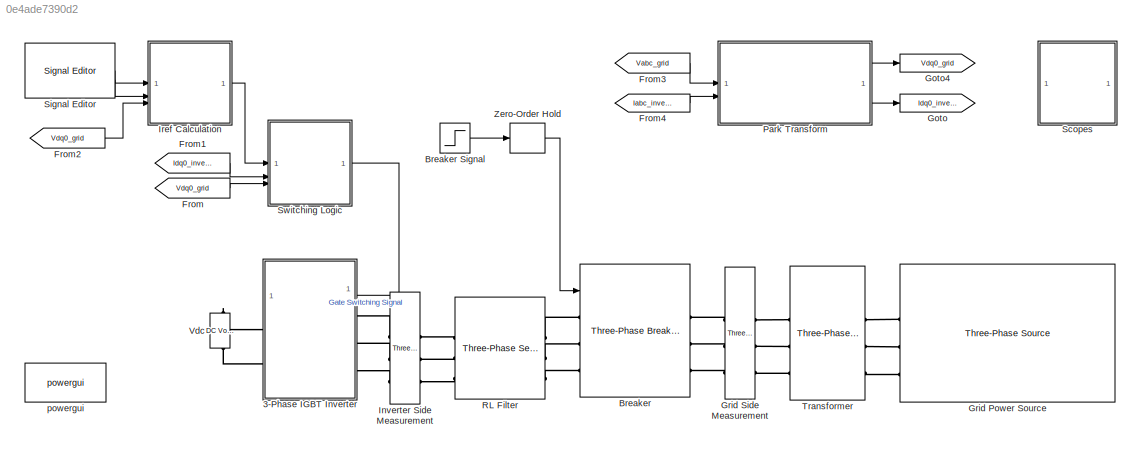
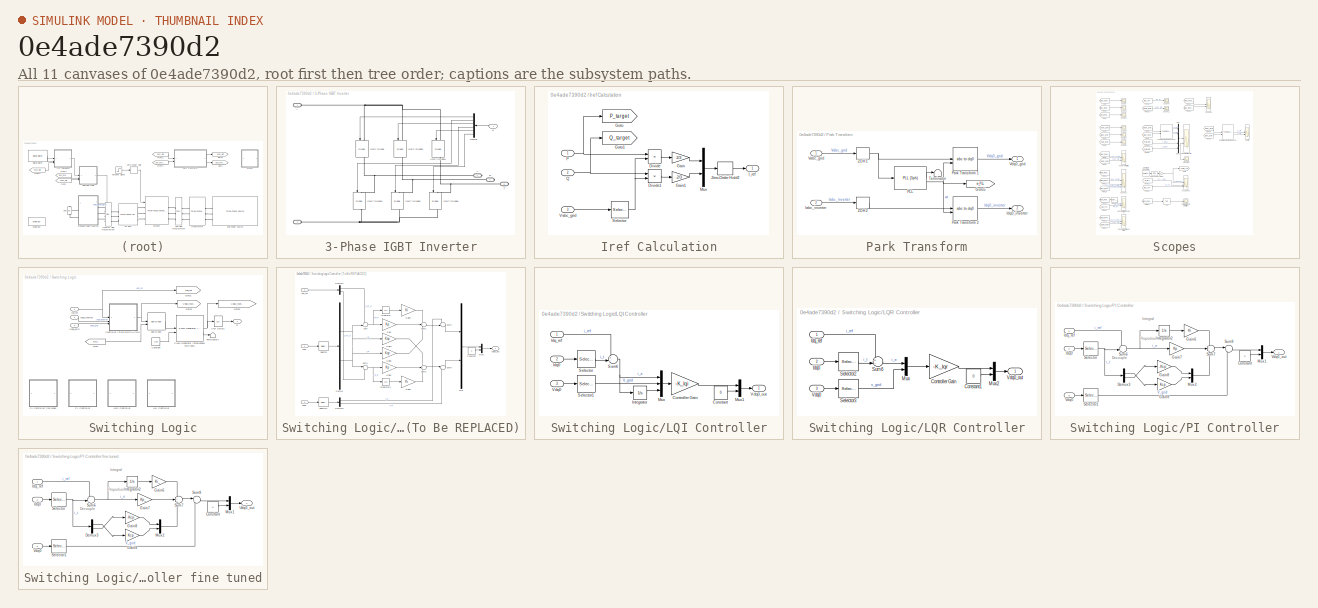
[diagram: thumbnail index - all 11 canvases of the model, root first then tree order]
MODEL slx_0e4ade7390d2
KIND model
CONFIG AbsTol = auto
CONFIG EnableMultiTasking = off
CONFIG FixedStep = auto
CONFIG InitFcn = run('constants.m');
CONFIG MaxStep = auto
CONFIG MinStep = auto
CONFIG PreLoadFcn = run('constants.m');
CONFIG RelTol = 1e-3
CONFIG SampleTimeConstraint = Unconstrained
CONFIG SolverName = ode45
CONFIG StartTime = 0.0
CONFIG StopTime = 1
BLOCK [SubSystem] 3-Phase IGBT Inverter
  PortSchema = {"entries":[{"content":{"sides":[{"content":{"connectorIds":["LConn1","LConn2"]},"type":"ConnectorPlacement.EquallySpacedRectSide","uuid":"b894f77a-afb6-49ea-9e82-1d7302d1b564"},{"content":{"connectorIds":["In1","RConn1","RConn2","RConn3"],"side":"RIGHT"},"type":"ConnectorPlacement.EquallySpacedRectSide","uuid":"2e0b49ec-be7c-4f2f-9d64-b0056ee6a69f"},{"content":{"side":"TOP"},"type":"ConnectorPlac...<+260ch>
BLOCK [PMIOPort] 3-Phase IGBT Inverter/+
  Side = Left
BLOCK [PMIOPort] 3-Phase IGBT Inverter/-
  Port = 2
  Side = Left
BLOCK [PMIOPort] 3-Phase IGBT Inverter/A
  NameLocation = top
  Port = 3
  Side = Right
BLOCK [PMIOPort] 3-Phase IGBT Inverter/B
  NameLocation = top
  Port = 4
  Side = Right
BLOCK [PMIOPort] 3-Phase IGBT Inverter/C
  NameLocation = top
  Port = 5
  Side = Right
BLOCK [Demux] 3-Phase IGBT Inverter/Demux
  NameLocation = top
  Outputs = 6
BLOCK [Reference] 3-Phase IGBT Inverter/IGBT//Diode  REF=spsIGBTDiodeLib/IGBT//Diode
  LibrarySourceBlock = sps_lib/Power Electronics/IGBT//Diode
  NameLocation = right
  SourceBlock = spsIGBTDiodeLib/IGBT//Diode
  SourceType = IGBT/Diode
BLOCK [Reference] 3-Phase IGBT Inverter/IGBT//Diode1  REF=spsIGBTDiodeLib/IGBT//Diode
  LibrarySourceBlock = sps_lib/Power Electronics/IGBT//Diode
  NameLocation = right
  SourceBlock = spsIGBTDiodeLib/IGBT//Diode
  SourceType = IGBT/Diode
BLOCK [Reference] 3-Phase IGBT Inverter/IGBT//Diode2  REF=spsIGBTDiodeLib/IGBT//Diode
  LibrarySourceBlock = sps_lib/Power Electronics/IGBT//Diode
  NameLocation = right
  SourceBlock = spsIGBTDiodeLib/IGBT//Diode
  SourceType = IGBT/Diode
BLOCK [Reference] 3-Phase IGBT Inverter/IGBT//Diode3  REF=spsIGBTDiodeLib/IGBT//Diode
  LibrarySourceBlock = sps_lib/Power Electronics/IGBT//Diode
  NameLocation = right
  SourceBlock = spsIGBTDiodeLib/IGBT//Diode
  SourceType = IGBT/Diode
BLOCK [Reference] 3-Phase IGBT Inverter/IGBT//Diode4  REF=spsIGBTDiodeLib/IGBT//Diode
  LibrarySourceBlock = sps_lib/Power Electronics/IGBT//Diode
  NameLocation = right
  SourceBlock = spsIGBTDiodeLib/IGBT//Diode
  SourceType = IGBT/Diode
BLOCK [Reference] 3-Phase IGBT Inverter/IGBT//Diode5  REF=spsIGBTDiodeLib/IGBT//Diode
  LibrarySourceBlock = sps_lib/Power Electronics/IGBT//Diode
  NameLocation = right
  SourceBlock = spsIGBTDiodeLib/IGBT//Diode
  SourceType = IGBT/Diode
BLOCK [Inport] 3-Phase IGBT Inverter/g
  NameLocation = top
BLOCK [Reference] Breaker  REF=spsThreePhaseBreakerLib/Three-Phase Breaker
  LibrarySourceBlock = sps_lib/Power Grid Elements/Three-Phase Breaker
  SourceBlock = spsThreePhaseBreakerLib/Three-Phase Breaker
  SourceType = Three-Phase Breaker
BLOCK [Step] Breaker Signal
  SampleTime = 0
  Time = t_breaker_on
BLOCK [From] From
  GotoTag = Vdq0_grid
  TagVisibility = global
BLOCK [From] From1
  GotoTag = Idq0_inverter
  TagVisibility = global
BLOCK [From] From2
  GotoTag = Vdq0_grid
  TagVisibility = global
BLOCK [From] From3
  GotoTag = Vabc_grid
  TagVisibility = global
BLOCK [From] From4
  GotoTag = Iabc_inverter
  TagVisibility = global
BLOCK [Goto] Goto
  GotoTag = Idq0_inverter
  TagVisibility = global
BLOCK [Goto] Goto4
  GotoTag = Vdq0_grid
  TagVisibility = global
BLOCK [Reference] Grid Power Source  REF=spsThreePhaseSourceLib/Three-Phase Source
  LibrarySourceBlock = sps_lib/Sources/Three-Phase Source
  SourceBlock = spsThreePhaseSourceLib/Three-Phase Source
  SourceType = Three-Phase Source
BLOCK [Reference] Grid Side Measurement  REF=spsThreePhaseVIMeasurementLib/Three-Phase
V-I Measurement
  LibrarySourceBlock = sps_lib/Sensors and Measurements/Three-Phase\nV-I Measurement
  SourceBlock = spsThreePhaseVIMeasurementLib/Three-Phase\nV-I Measurement
  SourceType = Three-Phase VI Measurement
BLOCK [Reference] Inverter Side Measurement  REF=spsThreePhaseVIMeasurementLib/Three-Phase
V-I Measurement
  LibrarySourceBlock = sps_lib/Sensors and Measurements/Three-Phase\nV-I Measurement
  SourceBlock = spsThreePhaseVIMeasurementLib/Three-Phase\nV-I Measurement
  SourceType = Three-Phase VI Measurement
BLOCK [SubSystem] Iref Calculation
BLOCK [Product] Iref Calculation/Divide
  Inputs = */
BLOCK [Product] Iref Calculation/Divide1
  Inputs = */
BLOCK [Gain] Iref Calculation/Gain
  Gain = 2/3
BLOCK [Gain] Iref Calculation/Gain1
  Gain = -2/3
BLOCK [Goto] Iref Calculation/Goto
  GotoTag = P_target
  TagVisibility = global
BLOCK [Goto] Iref Calculation/Goto1
  GotoTag = Q_target
  TagVisibility = global
BLOCK [Outport] Iref Calculation/I_ref
BLOCK [Mux] Iref Calculation/Mux
  DisplayOption = bar
  Inputs = 2
BLOCK [Inport] Iref Calculation/P
BLOCK [Inport] Iref Calculation/Q
  Port = 2
BLOCK [Selector] Iref Calculation/Selector
  IndexOptions = Index vector (dialog)
  Indices = [1]
  InputPortWidth = 3
  OutputSizes = 1
BLOCK [Inport] Iref Calculation/Vabc_grid
  Port = 3
BLOCK [ZeroOrderHold] Iref Calculation/Zero-Order Hold2
  SampleTime = t_sample
BLOCK [SubSystem] Park Transform
BLOCK [Goto] Park Transform/Goto5
  GotoTag = w_PLL
  TagVisibility = global
BLOCK [Inport] Park Transform/Iabc_inverter
  NameLocation = left
  Port = 2
BLOCK [Outport] Park Transform/Idq0_inverter
  NameLocation = right
  Port = 2
BLOCK [Reference] Park Transform/PLL  REF=spsPLL3phLib/PLL
(3ph)
  SourceBlock = spsPLL3phLib/PLL\n(3ph)
  SourceType = PLL (3ph)
BLOCK [Reference] Park Transform/Park Transform 1  REF=spsabctodq0Lib/abc to dq0
  SourceBlock = spsabctodq0Lib/abc to dq0
  SourceType = abc to dq0 Transformation
BLOCK [Reference] Park Transform/Park Transform 2  REF=spsabctodq0Lib/abc to dq0
  LibrarySourceBlock = sps_lib/Control/abc to dq0
  SourceBlock = spsabctodq0Lib/abc to dq0
  SourceType = abc to dq0 Transformation
BLOCK [Terminator] Park Transform/Terminator
BLOCK [Inport] Park Transform/Vabc_grid
  NameLocation = left
BLOCK [Outport] Park Transform/Vdq0_grid
  NameLocation = right
BLOCK [ZeroOrderHold] Park Transform/ZOH 1
  SampleTime = t_sample
BLOCK [ZeroOrderHold] Park Transform/ZOH 2
  SampleTime = t_sample
BLOCK [Reference] RL Filter  REF=spsThreePhaseSeriesRLCBranchLib/Three-Phase
Series RLC Branch
  AttributesFormatString = \n
  LibrarySourceBlock = sps_lib/Passives/Three-Phase\nSeries RLC Branch
  SourceBlock = spsThreePhaseSeriesRLCBranchLib/Three-Phase\nSeries RLC Branch
  SourceType = Three-Phase Series RLC Branch
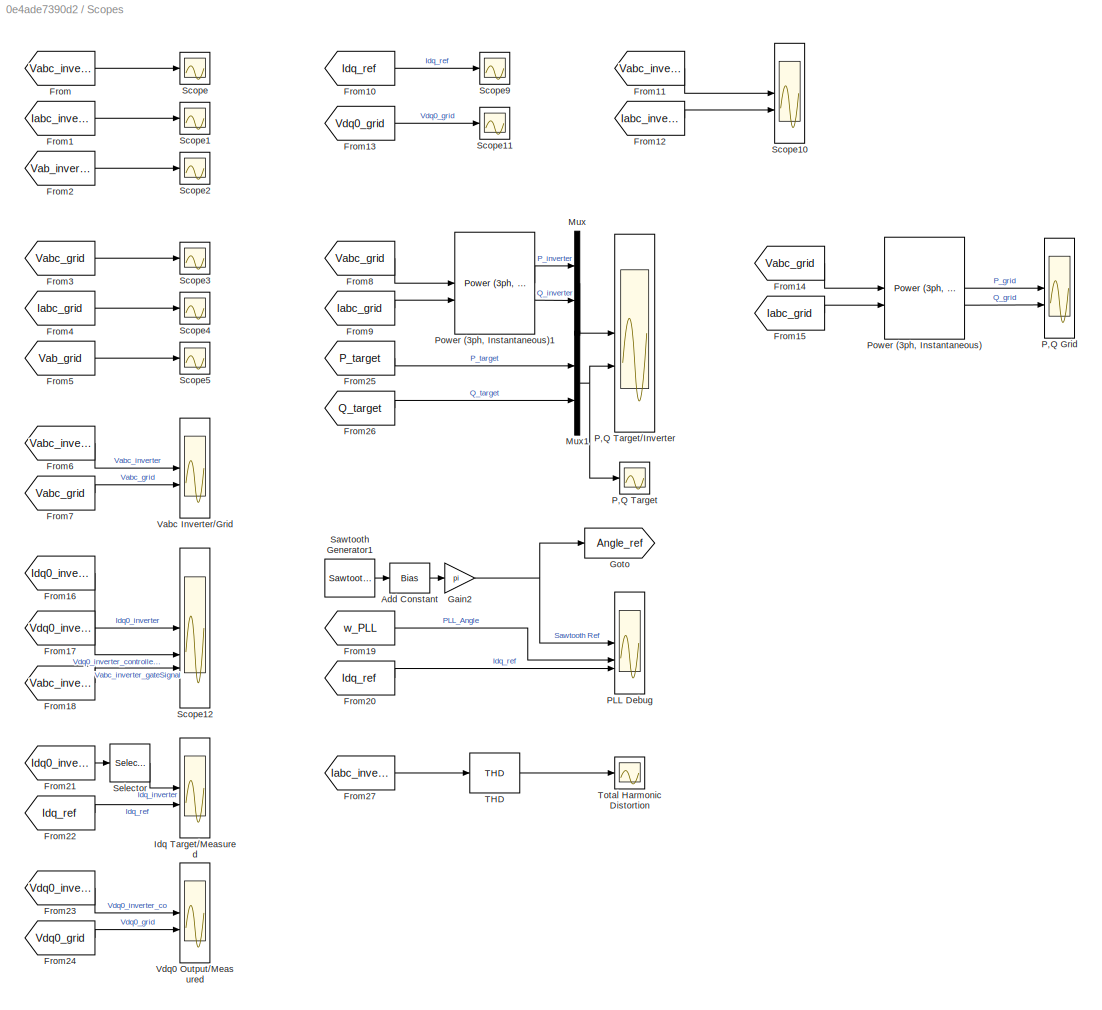
BLOCK [SubSystem] Scopes
BLOCK [Bias] Scopes/Add Constant
  Bias = 1
  SaturateOnIntegerOverflow = off
BLOCK [From] Scopes/From
  GotoTag = Vabc_inverter
  TagVisibility = global
BLOCK [From] Scopes/From1
  GotoTag = Iabc_inverter
  TagVisibility = global
BLOCK [From] Scopes/From10
  GotoTag = Idq_ref
  TagVisibility = global
BLOCK [From] Scopes/From11
  GotoTag = Vabc_inverter
  TagVisibility = global
BLOCK [From] Scopes/From12
  GotoTag = Iabc_inverter
  TagVisibility = global
BLOCK [From] Scopes/From13
  GotoTag = Vdq0_grid
  TagVisibility = global
BLOCK [From] Scopes/From14
  GotoTag = Vabc_grid
  TagVisibility = global
BLOCK [From] Scopes/From15
  GotoTag = Iabc_grid
  TagVisibility = global
BLOCK [From] Scopes/From16
  GotoTag = Idq0_inverter
  TagVisibility = global
BLOCK [From] Scopes/From17
  GotoTag = Vdq0_inverter_co
  TagVisibility = global
BLOCK [From] Scopes/From18
  GotoTag = Vabc_inverter_gateSignal
  TagVisibility = global
BLOCK [From] Scopes/From19
  GotoTag = w_PLL
  TagVisibility = global
BLOCK [From] Scopes/From2
  GotoTag = Vab_inverter
BLOCK [From] Scopes/From20
  GotoTag = Idq_ref
  TagVisibility = global
BLOCK [From] Scopes/From21
  GotoTag = Idq0_inverter
  TagVisibility = global
BLOCK [From] Scopes/From22
  GotoTag = Idq_ref
  TagVisibility = global
BLOCK [From] Scopes/From23
  GotoTag = Vdq0_inverter_co
  TagVisibility = global
BLOCK [From] Scopes/From24
  GotoTag = Vdq0_grid
  TagVisibility = global
BLOCK [From] Scopes/From25
  GotoTag = P_target
  TagVisibility = global
BLOCK [From] Scopes/From26
  GotoTag = Q_target
  TagVisibility = global
BLOCK [From] Scopes/From27
  GotoTag = Iabc_inverter
  TagVisibility = global
BLOCK [From] Scopes/From3
  GotoTag = Vabc_grid
  TagVisibility = global
BLOCK [From] Scopes/From4
  GotoTag = Iabc_grid
  TagVisibility = global
BLOCK [From] Scopes/From5
  GotoTag = Vab_grid
BLOCK [From] Scopes/From6
  GotoTag = Vabc_inverter
  TagVisibility = global
BLOCK [From] Scopes/From7
  GotoTag = Vabc_grid
  TagVisibility = global
BLOCK [From] Scopes/From8
  GotoTag = Vabc_grid
  TagVisibility = global
BLOCK [From] Scopes/From9
  GotoTag = Iabc_grid
  TagVisibility = global
BLOCK [Gain] Scopes/Gain2
  Gain = pi
BLOCK [Goto] Scopes/Goto
  GotoTag = Angle_ref
  TagVisibility = global
BLOCK [Scope] Scopes/Idq Target//Measured
  Floating = off
  NumInputPorts = 2
  ScopeSpecificationString = Simulink.scopes.TimeScopeBlockCfg('CurrentConfiguration', extmgr.ConfigurationSet(extmgr.Configuration('Core','General UI',true),extmgr.Configuration('Core','Source UI',true),extmgr.Configuration('Sources','WiredSimulink',true,'DataLoggingVariableName','Idq','DataLogging',true,'DataLoggingSaveFormat','StructureWithTime'),extmgr.Configuration('Visuals','Time Domain',true,'SerializedDisplays',{struc...<+1751ch>
BLOCK [Mux] Scopes/Mux
  DisplayOption = bar
  Inputs = 2
BLOCK [Mux] Scopes/Mux1
  DisplayOption = bar
  Inputs = 2
BLOCK [Scope] Scopes/P,Q Grid
  Floating = off
  NumInputPorts = 2
  ScopeSpecificationString = Simulink.scopes.TimeScopeBlockCfg('CurrentConfiguration', extmgr.ConfigurationSet(extmgr.Configuration('Core','General UI',true),extmgr.Configuration('Core','Source UI',true),extmgr.Configuration('Sources','WiredSimulink',true,'DataLoggingVariableName','ScopeData2'),extmgr.Configuration('Visuals','Time Domain',true,'SerializedDisplays',{struct('MinYLimReal','-22488.86172','MaxYLimReal','-16646.076...<+1565ch>
BLOCK [Scope] Scopes/P,Q Target
  Floating = off
  NumInputPorts = 1
  ScopeSpecificationString = Simulink.scopes.TimeScopeBlockCfg('CurrentConfiguration', extmgr.ConfigurationSet(extmgr.Configuration('Core','General UI',true),extmgr.Configuration('Core','Source UI',true),extmgr.Configuration('Sources','WiredSimulink',true,'DataLoggingVariableName','PQ_Target','DataLogging',true,'DataLoggingSaveFormat','StructureWithTime'),extmgr.Configuration('Visuals','Time Domain',true,'SerializedDisplays',...<+1596ch>
BLOCK [Scope] Scopes/P,Q Target//Inverter
  Floating = off
  NumInputPorts = 2
  ScopeSpecificationString = Simulink.scopes.TimeScopeBlockCfg('CurrentConfiguration', extmgr.ConfigurationSet(extmgr.Configuration('Core','General UI',true,'FigureColor',[0 0 0]),extmgr.Configuration('Core','Source UI',true),extmgr.Configuration('Sources','WiredSimulink',true,'DataLoggingVariableName','PQ','DataLogging',true,'DataLoggingSaveFormat','StructureWithTime'),extmgr.Configuration('Visuals','Time Domain',true,'Seria...<+1923ch>
BLOCK [Scope] Scopes/PLL Debug
  Floating = off
  NumInputPorts = 3
  ScopeSpecificationString = Simulink.scopes.TimeScopeBlockCfg('CurrentConfiguration', extmgr.ConfigurationSet(extmgr.Configuration('Core','General UI',true),extmgr.Configuration('Core','Source UI',true),extmgr.Configuration('Sources','WiredSimulink',true,'DataLoggingVariableName','ScopeData1'),extmgr.Configuration('Visuals','Time Domain',true,'SerializedDisplays',{struct('MinYLimReal','-1.25','MaxYLimReal','11.25','YLabelRea...<+1764ch>
BLOCK [Reference] Scopes/Power (3ph, Instantaneous)  REF=spsPower3phInstantaneousLib/Power
(3ph, Instantaneous)
  SourceBlock = spsPower3phInstantaneousLib/Power\n(3ph, Instantaneous)
  SourceType = Power (3ph, Instantaneous)
BLOCK [Reference] Scopes/Power (3ph, Instantaneous)1  REF=spsPower3phInstantaneousLib/Power
(3ph, Instantaneous)
  SourceBlock = spsPower3phInstantaneousLib/Power\n(3ph, Instantaneous)
  SourceType = Power (3ph, Instantaneous)
BLOCK [Reference] Scopes/Sawtooth Generator1  REF=spsSawtoothGeneratorLib/Sawtooth
Generator
  SourceBlock = spsSawtoothGeneratorLib/Sawtooth\nGenerator
  SourceType = Sawtooth Generator
BLOCK [Scope] Scopes/Scope
  Floating = off
  NumInputPorts = 1
  ScopeSpecificationString = Simulink.scopes.TimeScopeBlockCfg('CurrentConfiguration', extmgr.ConfigurationSet(extmgr.Configuration('Core','General UI',true),extmgr.Configuration('Core','Source UI',true),extmgr.Configuration('Sources','WiredSimulink',true),extmgr.Configuration('Visuals','Time Domain',true,'SerializedDisplays',{struct('MinYLimReal','-406.65231','MaxYLimReal','406.65208','YLabelReal','','MinYLimMag',' 0.00000',...<+1505ch>
BLOCK [Scope] Scopes/Scope1
  Floating = off
  NumInputPorts = 1
  ScopeSpecificationString = Simulink.scopes.TimeScopeBlockCfg('CurrentConfiguration', extmgr.ConfigurationSet(extmgr.Configuration('Core','General UI',true),extmgr.Configuration('Core','Source UI',true),extmgr.Configuration('Sources','WiredSimulink',true,'DataLoggingVariableName','ScopeData1'),extmgr.Configuration('Visuals','Time Domain',true,'SerializedDisplays',{struct('MinYLimReal','-7.83417','MaxYLimReal','7.84347','YLab...<+1648ch>
BLOCK [Scope] Scopes/Scope10
  Floating = off
  NumInputPorts = 2
  ScopeSpecificationString = Simulink.scopes.TimeScopeBlockCfg('CurrentConfiguration', extmgr.ConfigurationSet(extmgr.Configuration('Core','General UI',true),extmgr.Configuration('Core','Source UI',true),extmgr.Configuration('Sources','WiredSimulink',true,'DataLoggingVariableName','ScopeData2'),extmgr.Configuration('Visuals','Time Domain',true,'SerializedDisplays',{struct('MinYLimReal','-406.66686','MaxYLimReal','406.66672','...<+2356ch>
BLOCK [Scope] Scopes/Scope11
  Floating = off
  NumInputPorts = 1
  ScopeSpecificationString = Simulink.scopes.TimeScopeBlockCfg('CurrentConfiguration', extmgr.ConfigurationSet(extmgr.Configuration('Core','General UI',true),extmgr.Configuration('Core','Source UI',true),extmgr.Configuration('Sources','WiredSimulink',true,'DataLoggingVariableName','ScopeData3'),extmgr.Configuration('Visuals','Time Domain',true,'SerializedDisplays',{struct('MinYLimReal','-159.66826','MaxYLimReal','379.09216','...<+1655ch>
BLOCK [Scope] Scopes/Scope12
  Floating = off
  NumInputPorts = 3
  ScopeSpecificationString = Simulink.scopes.TimeScopeBlockCfg('CurrentConfiguration', extmgr.ConfigurationSet(extmgr.Configuration('Core','General UI',true),extmgr.Configuration('Core','Source UI',true),extmgr.Configuration('Sources','WiredSimulink',true,'DataLoggingVariableName','ScopeData3'),extmgr.Configuration('Visuals','Time Domain',true,'SerializedDisplays',{struct('MinYLimReal','-1.0498','MaxYLimReal','6.00072','YLabe...<+3558ch>
BLOCK [Scope] Scopes/Scope2
  Floating = off
  NumInputPorts = 1
  ScopeSpecificationString = Simulink.scopes.TimeScopeBlockCfg('CurrentConfiguration', extmgr.ConfigurationSet(extmgr.Configuration('Core','General UI',true),extmgr.Configuration('Core','Source UI',true),extmgr.Configuration('Sources','WiredSimulink',true,'DataLoggingVariableName','ScopeData2'),extmgr.Configuration('Visuals','Time Domain',true,'SerializedDisplays',{struct('MinYLimReal','-3247.59475','MaxYLimReal','3247.59475'...<+1520ch>
BLOCK [Scope] Scopes/Scope3
  Floating = off
  NumInputPorts = 1
  ScopeSpecificationString = Simulink.scopes.TimeScopeBlockCfg('CurrentConfiguration', extmgr.ConfigurationSet(extmgr.Configuration('Core','General UI',true),extmgr.Configuration('Core','Source UI',true),extmgr.Configuration('Sources','WiredSimulink',true,'DataLoggingVariableName','ScopeData3'),extmgr.Configuration('Visuals','Time Domain',true,'SerializedDisplays',{struct('MinYLimReal','-406.51995','MaxYLimReal','406.52001','...<+1528ch>
BLOCK [Scope] Scopes/Scope4
  Floating = off
  NumInputPorts = 1
  ScopeSpecificationString = Simulink.scopes.TimeScopeBlockCfg('CurrentConfiguration', extmgr.ConfigurationSet(extmgr.Configuration('Core','General UI',true),extmgr.Configuration('Core','Source UI',true),extmgr.Configuration('Sources','WiredSimulink',true,'DataLoggingVariableName','Iout','DataLogging',true,'DataLoggingSaveFormat','StructureWithTime'),extmgr.Configuration('Visuals','Time Domain',true,'SerializedDisplays',{stru...<+1644ch>
BLOCK [Scope] Scopes/Scope5
  Floating = off
  NumInputPorts = 1
  ScopeSpecificationString = Simulink.scopes.TimeScopeBlockCfg('CurrentConfiguration', extmgr.ConfigurationSet(extmgr.Configuration('Core','General UI',true),extmgr.Configuration('Core','Source UI',true),extmgr.Configuration('Sources','WiredSimulink',true,'DataLoggingVariableName','ScopeData5'),extmgr.Configuration('Visuals','Time Domain',true),extmgr.Configuration('Tools','Plot Navigation',true),extmgr.Configuration('Tools',...<+40ch>
BLOCK [Scope] Scopes/Scope9
  Floating = off
  NumInputPorts = 1
  ScopeSpecificationString = Simulink.scopes.TimeScopeBlockCfg('CurrentConfiguration', extmgr.ConfigurationSet(extmgr.Configuration('Core','General UI',true),extmgr.Configuration('Core','Source UI',true),extmgr.Configuration('Sources','WiredSimulink',true,'DataLoggingVariableName','ScopeData1'),extmgr.Configuration('Visuals','Time Domain',true,'SerializedDisplays',{struct('MinYLimReal','-1.00000','MaxYLimReal','1.00000','YLab...<+1621ch>
BLOCK [Selector] Scopes/Selector
  IndexOptions = Index vector (dialog)
  Indices = [1 2]
  InputPortWidth = 3
  OutputSizes = 1
BLOCK [Reference] Scopes/THD  REF=spsTHDLib/THD
  LibrarySourceBlock = sps_lib/Sensors and Measurements/THD
  SourceBlock = spsTHDLib/THD
  SourceType = THD
BLOCK [Scope] Scopes/Total Harmonic Distortion
  Floating = off
  NumInputPorts = 1
  ScopeSpecificationString = Simulink.scopes.TimeScopeBlockCfg('CurrentConfiguration', extmgr.ConfigurationSet(extmgr.Configuration('Core','General UI',true),extmgr.Configuration('Core','Source UI',true),extmgr.Configuration('Sources','WiredSimulink',true,'DataLoggingVariableName','thd','DataLogging',true,'DataLoggingSaveFormat','StructureWithTime'),extmgr.Configuration('Visuals','Time Domain',true,'SerializedDisplays',{struc...<+1995ch>
BLOCK [Scope] Scopes/Vabc Inverter//Grid
  Floating = off
  NumInputPorts = 2
  ScopeSpecificationString = Simulink.scopes.TimeScopeBlockCfg('CurrentConfiguration', extmgr.ConfigurationSet(extmgr.Configuration('Core','General UI',true),extmgr.Configuration('Core','Source UI',true),extmgr.Configuration('Sources','WiredSimulink',true,'DataLoggingVariableName','ScopeData1'),extmgr.Configuration('Visuals','Time Domain',true,'SerializedDisplays',{struct('MinYLimReal','-406.66686','MaxYLimReal','406.66668','...<+2444ch>
BLOCK [Scope] Scopes/Vdq0 Output//Measured
  Floating = off
  NumInputPorts = 2
  ScopeSpecificationString = Simulink.scopes.TimeScopeBlockCfg('CurrentConfiguration', extmgr.ConfigurationSet(extmgr.Configuration('Core','General UI',true),extmgr.Configuration('Core','Source UI',true),extmgr.Configuration('Sources','WiredSimulink',true,'DataLoggingVariableName','ScopeData2'),extmgr.Configuration('Visuals','Time Domain',true,'SerializedDisplays',{struct('MinYLimReal','-33200.63748','MaxYLimReal','54224.1084...<+2529ch>
BLOCK [Reference] Signal Editor  REF=SignalEditorBlockLib/Signal Editor
  LibrarySourceBlock = simulink/Sources/Signal Editor
  SourceBlock = SignalEditorBlockLib/Signal Editor
  SourceType = SignalEditor
  UserDataPersistent = on
BLOCK [SubSystem] Switching Logic
BLOCK [Constant] Switching Logic/Constant
  Value = V_dc
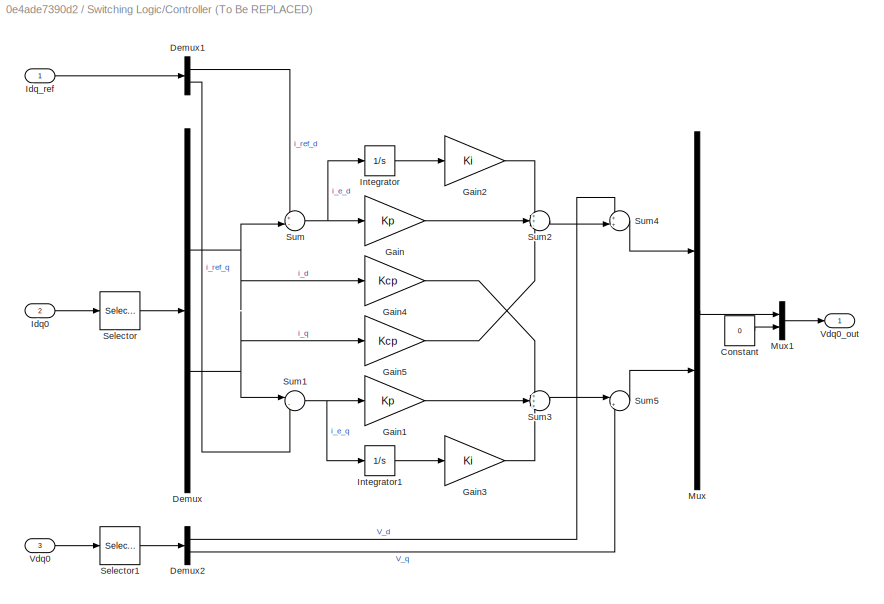
BLOCK [SubSystem] Switching Logic/Controller (To Be REPLACED)
BLOCK [Constant] Switching Logic/Controller (To Be REPLACED)/Constant
  Value = 0
BLOCK [Demux] Switching Logic/Controller (To Be REPLACED)/Demux
  Outputs = 2
BLOCK [Demux] Switching Logic/Controller (To Be REPLACED)/Demux1
  Outputs = 2
BLOCK [Demux] Switching Logic/Controller (To Be REPLACED)/Demux2
  Outputs = 2
BLOCK [Gain] Switching Logic/Controller (To Be REPLACED)/Gain
  Gain = Kp
BLOCK [Gain] Switching Logic/Controller (To Be REPLACED)/Gain1
  Gain = Kp
BLOCK [Gain] Switching Logic/Controller (To Be REPLACED)/Gain2
  Gain = Ki
BLOCK [Gain] Switching Logic/Controller (To Be REPLACED)/Gain3
  Gain = Ki
BLOCK [Gain] Switching Logic/Controller (To Be REPLACED)/Gain4
  Gain = Kcp
BLOCK [Gain] Switching Logic/Controller (To Be REPLACED)/Gain5
  Gain = Kcp
BLOCK [Inport] Switching Logic/Controller (To Be REPLACED)/Idq0
  Port = 2
BLOCK [Inport] Switching Logic/Controller (To Be REPLACED)/Idq_ref
BLOCK [Integrator] Switching Logic/Controller (To Be REPLACED)/Integrator
BLOCK [Integrator] Switching Logic/Controller (To Be REPLACED)/Integrator1
BLOCK [Mux] Switching Logic/Controller (To Be REPLACED)/Mux
  DisplayOption = bar
  Inputs = 2
BLOCK [Mux] Switching Logic/Controller (To Be REPLACED)/Mux1
  DisplayOption = bar
  Inputs = 2
BLOCK [Selector] Switching Logic/Controller (To Be REPLACED)/Selector
  IndexOptions = Index vector (dialog)
  Indices = [1 2]
  InputPortWidth = 3
  OutputSizes = 1
BLOCK [Selector] Switching Logic/Controller (To Be REPLACED)/Selector1
  IndexOptions = Index vector (dialog)
  Indices = [1 2]
  InputPortWidth = 3
  OutputSizes = 1
BLOCK [Sum] Switching Logic/Controller (To Be REPLACED)/Sum
  Inputs = +-|
  NameLocation = top
BLOCK [Sum] Switching Logic/Controller (To Be REPLACED)/Sum1
  Inputs = |-+
  NameLocation = top
BLOCK [Sum] Switching Logic/Controller (To Be REPLACED)/Sum2
  Inputs = ++-
  NameLocation = top
BLOCK [Sum] Switching Logic/Controller (To Be REPLACED)/Sum3
  Inputs = +++
  NameLocation = top
BLOCK [Sum] Switching Logic/Controller (To Be REPLACED)/Sum4
  Inputs = ++|
  NameLocation = top
BLOCK [Sum] Switching Logic/Controller (To Be REPLACED)/Sum5
  Inputs = |++
  NameLocation = top
BLOCK [Inport] Switching Logic/Controller (To Be REPLACED)/Vdq0
  Port = 3
BLOCK [Outport] Switching Logic/Controller (To Be REPLACED)/Vdq0_out
BLOCK [From] Switching Logic/From
  GotoTag = w_PLL
  TagVisibility = global
BLOCK [Goto] Switching Logic/Goto1
  GotoTag = Idq_ref
  TagVisibility = global
BLOCK [Goto] Switching Logic/Goto2
  GotoTag = Vabc_inverter_gateSignal
  TagVisibility = global
BLOCK [Goto] Switching Logic/Goto3
  GotoTag = Vdq0_inverter_co
  TagVisibility = global
BLOCK [Inport] Switching Logic/Idq_ref
  NameLocation = left
BLOCK [Inport] Switching Logic/Iqd0_inverter
  NameLocation = left
  Port = 2
BLOCK [SubSystem] Switching Logic/LQI Controller
BLOCK [Integrator] Switching Logic/LQI Controller/ Integrator 
BLOCK [Constant] Switching Logic/LQI Controller/Constant
  Value = 0
BLOCK [Gain] Switching Logic/LQI Controller/Controller Gain
  Gain = -K_lqi
  Multiplication = Matrix(K*u)
BLOCK [Inport] Switching Logic/LQI Controller/Idq0
  Port = 2
BLOCK [Inport] Switching Logic/LQI Controller/Idq_ref
BLOCK [Mux] Switching Logic/LQI Controller/Mux
  DisplayOption = bar
  Inputs = 3
BLOCK [Mux] Switching Logic/LQI Controller/Mux1
  DisplayOption = bar
  Inputs = 2
BLOCK [Selector] Switching Logic/LQI Controller/Selector
  IndexOptions = Index vector (dialog)
  Indices = [1 2]
  InputPortWidth = 3
  OutputSizes = 1
BLOCK [Selector] Switching Logic/LQI Controller/Selector1
  IndexOptions = Index vector (dialog)
  Indices = [1 2]
  InputPortWidth = 3
  OutputSizes = 1
BLOCK [Sum] Switching Logic/LQI Controller/Sum6
  Inputs = +-|
  NameLocation = top
BLOCK [Inport] Switching Logic/LQI Controller/Vdq0
  Port = 3
BLOCK [Outport] Switching Logic/LQI Controller/Vdq0_out
BLOCK [SubSystem] Switching Logic/LQR Controller
BLOCK [Constant] Switching Logic/LQR Controller/Constant1
  Value = 0
BLOCK [Gain] Switching Logic/LQR Controller/Controller Gain
  Gain = -K_lqr
  Multiplication = Matrix(K*u)
BLOCK [Inport] Switching Logic/LQR Controller/Idq0
  Port = 2
BLOCK [Inport] Switching Logic/LQR Controller/Idq_ref
BLOCK [Mux] Switching Logic/LQR Controller/Mux
  DisplayOption = bar
  Inputs = 2
BLOCK [Mux] Switching Logic/LQR Controller/Mux2
  DisplayOption = bar
  Inputs = 2
BLOCK [Selector] Switching Logic/LQR Controller/Selector2
  IndexOptions = Index vector (dialog)
  Indices = [1 2]
  InputPortWidth = 3
  OutputSizes = 1
BLOCK [Selector] Switching Logic/LQR Controller/Selector3
  IndexOptions = Index vector (dialog)
  Indices = [1 2]
  InputPortWidth = 3
  OutputSizes = 1
BLOCK [Sum] Switching Logic/LQR Controller/Sum6
  Inputs = +-|
  NameLocation = top
BLOCK [Inport] Switching Logic/LQR Controller/Vdq0
  Port = 3
BLOCK [Outport] Switching Logic/LQR Controller/Vdq0_out
BLOCK [SubSystem] Switching Logic/PI Controller
BLOCK [SubSystem] Switching Logic/PI Controller fine tuned
BLOCK [Constant] Switching Logic/PI Controller fine tuned/Constant
  Value = 0
BLOCK [Demux] Switching Logic/PI Controller fine tuned/Demux3
  Outputs = 2
BLOCK [Gain] Switching Logic/PI Controller fine tuned/Gain6
  Gain = Ki_
BLOCK [Gain] Switching Logic/PI Controller fine tuned/Gain7
  Gain = Kp_
BLOCK [Gain] Switching Logic/PI Controller fine tuned/Gain8
  Gain = -Kcp
BLOCK [Gain] Switching Logic/PI Controller fine tuned/Gain9
  Gain = Kcp
BLOCK [Inport] Switching Logic/PI Controller fine tuned/Idq0
  Port = 2
BLOCK [Inport] Switching Logic/PI Controller fine tuned/Idq_ref
BLOCK [Integrator] Switching Logic/PI Controller fine tuned/Integrator2
BLOCK [Mux] Switching Logic/PI Controller fine tuned/Mux1
  DisplayOption = bar
  Inputs = 2
BLOCK [Mux] Switching Logic/PI Controller fine tuned/Mux2
  DisplayOption = bar
  Inputs = 2
BLOCK [Selector] Switching Logic/PI Controller fine tuned/Selector
  IndexOptions = Index vector (dialog)
  Indices = [1 2]
  InputPortWidth = 3
  OutputSizes = 1
BLOCK [Selector] Switching Logic/PI Controller fine tuned/Selector1
  IndexOptions = Index vector (dialog)
  Indices = [1 2]
  InputPortWidth = 3
  OutputSizes = 1
BLOCK [Sum] Switching Logic/PI Controller fine tuned/Sum6
  Inputs = +-|
  NameLocation = top
BLOCK [Sum] Switching Logic/PI Controller fine tuned/Sum7
  Inputs = +++
  NameLocation = top
BLOCK [Sum] Switching Logic/PI Controller fine tuned/Sum8
  Inputs = |++
  NameLocation = top
BLOCK [Outport] Switching Logic/PI Controller fine tuned/Udq0_out
BLOCK [Inport] Switching Logic/PI Controller fine tuned/Vdq0
  Port = 3
BLOCK [Constant] Switching Logic/PI Controller/Constant
  Value = 0
BLOCK [Demux] Switching Logic/PI Controller/Demux3
  Outputs = 2
BLOCK [Gain] Switching Logic/PI Controller/Gain6
  Gain = Ki
BLOCK [Gain] Switching Logic/PI Controller/Gain7
  Gain = Kp
BLOCK [Gain] Switching Logic/PI Controller/Gain8
  Gain = -Kcp
BLOCK [Gain] Switching Logic/PI Controller/Gain9
  Gain = Kcp
BLOCK [Inport] Switching Logic/PI Controller/Idq0
  Port = 2
BLOCK [Inport] Switching Logic/PI Controller/Idq_ref
BLOCK [Integrator] Switching Logic/PI Controller/Integrator2
BLOCK [Mux] Switching Logic/PI Controller/Mux1
  DisplayOption = bar
  Inputs = 2
BLOCK [Mux] Switching Logic/PI Controller/Mux2
  DisplayOption = bar
  Inputs = 2
BLOCK [Selector] Switching Logic/PI Controller/Selector
  IndexOptions = Index vector (dialog)
  Indices = [1 2]
  InputPortWidth = 3
  OutputSizes = 1
BLOCK [Selector] Switching Logic/PI Controller/Selector1
  IndexOptions = Index vector (dialog)
  Indices = [1 2]
  InputPortWidth = 3
  OutputSizes = 1
BLOCK [Sum] Switching Logic/PI Controller/Sum6
  Inputs = +-|
  NameLocation = top
BLOCK [Sum] Switching Logic/PI Controller/Sum7
  Inputs = +++
  NameLocation = top
BLOCK [Sum] Switching Logic/PI Controller/Sum8
  Inputs = |++
  NameLocation = top
BLOCK [Inport] Switching Logic/PI Controller/Vdq0
  Port = 3
BLOCK [Outport] Switching Logic/PI Controller/Vdq0_out
BLOCK [Reference] Switching Logic/PWM Generator (Three-phase, Two-level)  REF=eePwmGeneratorTwoLevel/PWM Generator
(Three-phase, Two-level)
  LibrarySourceBlock = ee_sl_lib/Pulse Width\nModulation/PWM Generator\n(Three-phase, Two-level)
  SourceBlock = eePwmGeneratorTwoLevel/PWM Generator\n(Three-phase, Two-level)
  SourceType = PWM Generator (three-phase, two-level)
BLOCK [Terminator] Switching Logic/Terminator3
BLOCK [UnitDelay] Switching Logic/Unit Delay1
  HasFrameUpgradeWarning = on
  SampleTime = t_sample
BLOCK [Inport] Switching Logic/Vqd0_grid
  NameLocation = left
  Port = 3
BLOCK [Reference] Switching Logic/dq0 to abc  REF=spsdq0toabcLib/dq0 to abc
  LibrarySourceBlock = sps_lib/Control/dq0 to abc
  SourceBlock = spsdq0toabcLib/dq0 to abc
  SourceType = dq0 to abc Transformation
BLOCK [Outport] Switching Logic/g
BLOCK [Reference] Transformer  REF=spsThreePhaseTransformerTwoWindingsLib/Three-Phase
Transformer
(Two Windings)
  LibrarySourceBlock = sps_lib/Power Grid Elements/Three-Phase\nTransformer\n(Two Windings)
  SourceBlock = spsThreePhaseTransformerTwoWindingsLib/Three-Phase\nTransformer\n(Two Windings)
  SourceType = Three-Phase Transformer (Two Windings)
BLOCK [Reference] Vdc  REF=spsDCVoltageSourceLib/DC Voltage Source
  LibrarySourceBlock = sps_lib/Sources/DC Voltage Source
  NameLocation = left
  SourceBlock = spsDCVoltageSourceLib/DC Voltage Source
  SourceType = DC Voltage Source
BLOCK [ZeroOrderHold] Zero-Order Hold
  SampleTime = t_sample
BLOCK [Reference] powergui  REF=sps_lib/powergui
  LibrarySourceBlock = sps_lib/powergui
  Priority = 1
  SourceBlock = sps_lib/powergui
  SourceType = PSB option menu block
ANNOTATION Switching Logic/PI Controller: Decouple
ANNOTATION Switching Logic/PI Controller: Integral
ANNOTATION Switching Logic/PI Controller: Proportion
ANNOTATION Switching Logic/PI Controller fine tuned: Decouple
ANNOTATION Switching Logic/PI Controller fine tuned: Integral
ANNOTATION Switching Logic/PI Controller fine tuned: Proportion
LINE 3-Phase IGBT Inverter/Demux:1 -> 3-Phase IGBT Inverter/IGBT//Diode:1
LINE 3-Phase IGBT Inverter/Demux:2 -> 3-Phase IGBT Inverter/IGBT//Diode1:1
LINE 3-Phase IGBT Inverter/Demux:3 -> 3-Phase IGBT Inverter/IGBT//Diode2:1
LINE 3-Phase IGBT Inverter/Demux:4 -> 3-Phase IGBT Inverter/IGBT//Diode3:1
LINE 3-Phase IGBT Inverter/Demux:5 -> 3-Phase IGBT Inverter/IGBT//Diode4:1
LINE 3-Phase IGBT Inverter/Demux:6 -> 3-Phase IGBT Inverter/IGBT//Diode5:1
LINE 3-Phase IGBT Inverter/g:1 -> 3-Phase IGBT Inverter/Demux:1
LINE Breaker Signal:1 -> Zero-Order Hold:1
LINE From1:1 -> Switching Logic:2
LINE From2:1 -> Iref Calculation:3
LINE From3:1 -> Park Transform:1
LINE From4:1 -> Park Transform:2
LINE From:1 -> Switching Logic:3
LINE Iref Calculation/Divide1:1 -> Iref Calculation/Gain1:1
LINE Iref Calculation/Divide:1 -> Iref Calculation/Gain:1
LINE Iref Calculation/Gain1:1 -> Iref Calculation/Mux:2
LINE Iref Calculation/Gain:1 -> Iref Calculation/Mux:1
LINE Iref Calculation/Mux:1 -> Iref Calculation/Zero-Order Hold2:1
NET Iref Calculation/P:1 -> Iref Calculation/Divide:1, Iref Calculation/Goto:1
NET Iref Calculation/Q:1 -> Iref Calculation/Divide1:1, Iref Calculation/Goto1:1
NET Iref Calculation/Selector:1 -> Iref Calculation/Divide1:2, Iref Calculation/Divide:2
LINE Iref Calculation/Vabc_grid:1 -> Iref Calculation/Selector:1
LINE Iref Calculation/Zero-Order Hold2:1 -> Iref Calculation/I_ref:1
LINE Iref Calculation:1 -> Switching Logic:1
LINE Park Transform/Iabc_inverter:1 -> Park Transform/ZOH 2:1
LINE Park Transform/PLL:1 -> Park Transform/Terminator:1
NET Park Transform/PLL:2 -> Park Transform/Goto5:1, Park Transform/Park Transform 1:2, Park Transform/Park Transform 2:2
LINE Park Transform/Park Transform 1:1 -> Park Transform/Vdq0_grid:1
LINE Park Transform/Park Transform 2:1 -> Park Transform/Idq0_inverter:1
LINE Park Transform/Vabc_grid:1 -> Park Transform/ZOH 1:1
NET Park Transform/ZOH 1:1 -> Park Transform/PLL:1, Park Transform/Park Transform 1:1
LINE Park Transform/ZOH 2:1 -> Park Transform/Park Transform 2:1
LINE Park Transform:1 -> Goto4:1
LINE Park Transform:2 -> Goto:1
LINE Scopes/Add Constant:1 -> Scopes/Gain2:1
LINE Scopes/From10:1 -> Scopes/Scope9:1
LINE Scopes/From11:1 -> Scopes/Scope10:1
LINE Scopes/From12:1 -> Scopes/Scope10:2
LINE Scopes/From13:1 -> Scopes/Scope11:1
LINE Scopes/From14:1 -> Scopes/Power (3ph, Instantaneous):1
LINE Scopes/From15:1 -> Scopes/Power (3ph, Instantaneous):2
LINE Scopes/From16:1 -> Scopes/Scope12:1
LINE Scopes/From17:1 -> Scopes/Scope12:2
LINE Scopes/From18:1 -> Scopes/Scope12:3
LINE Scopes/From19:1 -> Scopes/PLL Debug:2
LINE Scopes/From1:1 -> Scopes/Scope1:1
LINE Scopes/From20:1 -> Scopes/PLL Debug:3
LINE Scopes/From21:1 -> Scopes/Selector:1
LINE Scopes/From22:1 -> Scopes/Idq Target//Measured:2
LINE Scopes/From23:1 -> Scopes/Vdq0 Output//Measured:1
LINE Scopes/From24:1 -> Scopes/Vdq0 Output//Measured:2
LINE Scopes/From25:1 -> Scopes/Mux1:1
LINE Scopes/From26:1 -> Scopes/Mux1:2
LINE Scopes/From27:1 -> Scopes/THD:1
LINE Scopes/From2:1 -> Scopes/Scope2:1
LINE Scopes/From3:1 -> Scopes/Scope3:1
LINE Scopes/From4:1 -> Scopes/Scope4:1
LINE Scopes/From5:1 -> Scopes/Scope5:1
LINE Scopes/From6:1 -> Scopes/Vabc Inverter//Grid:1
LINE Scopes/From7:1 -> Scopes/Vabc Inverter//Grid:2
LINE Scopes/From8:1 -> Scopes/Power (3ph, Instantaneous)1:1
LINE Scopes/From9:1 -> Scopes/Power (3ph, Instantaneous)1:2
LINE Scopes/From:1 -> Scopes/Scope:1
NET Scopes/Gain2:1 -> Scopes/Goto:1, Scopes/PLL Debug:1
NET Scopes/Mux1:1 -> Scopes/P,Q Target//Inverter:2, Scopes/P,Q Target:1
LINE Scopes/Mux:1 -> Scopes/P,Q Target//Inverter:1
LINE Scopes/Power (3ph, Instantaneous)1:1 -> Scopes/Mux:1
LINE Scopes/Power (3ph, Instantaneous)1:2 -> Scopes/Mux:2
LINE Scopes/Power (3ph, Instantaneous):1 -> Scopes/P,Q Grid:1
LINE Scopes/Power (3ph, Instantaneous):2 -> Scopes/P,Q Grid:2
LINE Scopes/Sawtooth Generator1:1 -> Scopes/Add Constant:1
LINE Scopes/Selector:1 -> Scopes/Idq Target//Measured:1
LINE Scopes/THD:1 -> Scopes/Total Harmonic Distortion:1
LINE Signal Editor:1 -> Iref Calculation:1
LINE Signal Editor:2 -> Iref Calculation:2
LINE Switching Logic/Constant:1 -> Switching Logic/PWM Generator (Three-phase, Two-level):2
LINE Switching Logic/Controller (To Be REPLACED)/Constant:1 -> Switching Logic/Controller (To Be REPLACED)/Mux1:2
LINE Switching Logic/Controller (To Be REPLACED)/Demux1:1 -> Switching Logic/Controller (To Be REPLACED)/Sum:1
LINE Switching Logic/Controller (To Be REPLACED)/Demux1:2 -> Switching Logic/Controller (To Be REPLACED)/Sum1:2
LINE Switching Logic/Controller (To Be REPLACED)/Demux2:1 -> Switching Logic/Controller (To Be REPLACED)/Sum4:1
LINE Switching Logic/Controller (To Be REPLACED)/Demux2:2 -> Switching Logic/Controller (To Be REPLACED)/Sum5:2
NET Switching Logic/Controller (To Be REPLACED)/Demux:1 -> Switching Logic/Controller (To Be REPLACED)/Gain4:1, Switching Logic/Controller (To Be REPLACED)/Sum:2
NET Switching Logic/Controller (To Be REPLACED)/Demux:2 -> Switching Logic/Controller (To Be REPLACED)/Gain5:1, Switching Logic/Controller (To Be REPLACED)/Sum1:1
LINE Switching Logic/Controller (To Be REPLACED)/Gain1:1 -> Switching Logic/Controller (To Be REPLACED)/Sum3:2
LINE Switching Logic/Controller (To Be REPLACED)/Gain2:1 -> Switching Logic/Controller (To Be REPLACED)/Sum2:1
LINE Switching Logic/Controller (To Be REPLACED)/Gain3:1 -> Switching Logic/Controller (To Be REPLACED)/Sum3:3
LINE Switching Logic/Controller (To Be REPLACED)/Gain4:1 -> Switching Logic/Controller (To Be REPLACED)/Sum3:1
LINE Switching Logic/Controller (To Be REPLACED)/Gain5:1 -> Switching Logic/Controller (To Be REPLACED)/Sum2:3
LINE Switching Logic/Controller (To Be REPLACED)/Gain:1 -> Switching Logic/Controller (To Be REPLACED)/Sum2:2
LINE Switching Logic/Controller (To Be REPLACED)/Idq0:1 -> Switching Logic/Controller (To Be REPLACED)/Selector:1
LINE Switching Logic/Controller (To Be REPLACED)/Idq_ref:1 -> Switching Logic/Controller (To Be REPLACED)/Demux1:1
LINE Switching Logic/Controller (To Be REPLACED)/Integrator1:1 -> Switching Logic/Controller (To Be REPLACED)/Gain3:1
LINE Switching Logic/Controller (To Be REPLACED)/Integrator:1 -> Switching Logic/Controller (To Be REPLACED)/Gain2:1
LINE Switching Logic/Controller (To Be REPLACED)/Mux1:1 -> Switching Logic/Controller (To Be REPLACED)/Vdq0_out:1
LINE Switching Logic/Controller (To Be REPLACED)/Mux:1 -> Switching Logic/Controller (To Be REPLACED)/Mux1:1
LINE Switching Logic/Controller (To Be REPLACED)/Selector1:1 -> Switching Logic/Controller (To Be REPLACED)/Demux2:1
LINE Switching Logic/Controller (To Be REPLACED)/Selector:1 -> Switching Logic/Controller (To Be REPLACED)/Demux:1
NET Switching Logic/Controller (To Be REPLACED)/Sum1:1 -> Switching Logic/Controller (To Be REPLACED)/Gain1:1, Switching Logic/Controller (To Be REPLACED)/Integrator1:1
LINE Switching Logic/Controller (To Be REPLACED)/Sum2:1 -> Switching Logic/Controller (To Be REPLACED)/Sum4:2
LINE Switching Logic/Controller (To Be REPLACED)/Sum3:1 -> Switching Logic/Controller (To Be REPLACED)/Sum5:1
LINE Switching Logic/Controller (To Be REPLACED)/Sum4:1 -> Switching Logic/Controller (To Be REPLACED)/Mux:1
LINE Switching Logic/Controller (To Be REPLACED)/Sum5:1 -> Switching Logic/Controller (To Be REPLACED)/Mux:2
NET Switching Logic/Controller (To Be REPLACED)/Sum:1 -> Switching Logic/Controller (To Be REPLACED)/Gain:1, Switching Logic/Controller (To Be REPLACED)/Integrator:1
LINE Switching Logic/Controller (To Be REPLACED)/Vdq0:1 -> Switching Logic/Controller (To Be REPLACED)/Selector1:1
NET Switching Logic/Controller (To Be REPLACED):1 -> Switching Logic/Goto3:1, Switching Logic/dq0 to abc:1
LINE Switching Logic/From:1 -> Switching Logic/dq0 to abc:2
NET Switching Logic/Idq_ref:1 -> Switching Logic/Controller (To Be REPLACED):1, Switching Logic/Goto1:1
LINE Switching Logic/Iqd0_inverter:1 -> Switching Logic/Controller (To Be REPLACED):2
LINE Switching Logic/LQI Controller/ Integrator :1 -> Switching Logic/LQI Controller/Mux:3
LINE Switching Logic/LQI Controller/Constant:1 -> Switching Logic/LQI Controller/Mux1:2
LINE Switching Logic/LQI Controller/Controller Gain:1 -> Switching Logic/LQI Controller/Mux1:1
LINE Switching Logic/LQI Controller/Idq0:1 -> Switching Logic/LQI Controller/Selector:1
LINE Switching Logic/LQI Controller/Idq_ref:1 -> Switching Logic/LQI Controller/Sum6:1
LINE Switching Logic/LQI Controller/Mux1:1 -> Switching Logic/LQI Controller/Vdq0_out:1
LINE Switching Logic/LQI Controller/Mux:1 -> Switching Logic/LQI Controller/Controller Gain:1
LINE Switching Logic/LQI Controller/Selector1:1 -> Switching Logic/LQI Controller/Mux:2
LINE Switching Logic/LQI Controller/Selector:1 -> Switching Logic/LQI Controller/Sum6:2
NET Switching Logic/LQI Controller/Sum6:1 -> Switching Logic/LQI Controller/ Integrator :1, Switching Logic/LQI Controller/Mux:1
LINE Switching Logic/LQI Controller/Vdq0:1 -> Switching Logic/LQI Controller/Selector1:1
LINE Switching Logic/LQR Controller/Constant1:1 -> Switching Logic/LQR Controller/Mux2:2
LINE Switching Logic/LQR Controller/Controller Gain:1 -> Switching Logic/LQR Controller/Mux2:1
LINE Switching Logic/LQR Controller/Idq0:1 -> Switching Logic/LQR Controller/Selector2:1
LINE Switching Logic/LQR Controller/Idq_ref:1 -> Switching Logic/LQR Controller/Sum6:1
LINE Switching Logic/LQR Controller/Mux2:1 -> Switching Logic/LQR Controller/Vdq0_out:1
LINE Switching Logic/LQR Controller/Mux:1 -> Switching Logic/LQR Controller/Controller Gain:1
LINE Switching Logic/LQR Controller/Selector2:1 -> Switching Logic/LQR Controller/Sum6:2
LINE Switching Logic/LQR Controller/Selector3:1 -> Switching Logic/LQR Controller/Mux:2
LINE Switching Logic/LQR Controller/Sum6:1 -> Switching Logic/LQR Controller/Mux:1
LINE Switching Logic/LQR Controller/Vdq0:1 -> Switching Logic/LQR Controller/Selector3:1
LINE Switching Logic/PI Controller fine tuned/Constant:1 -> Switching Logic/PI Controller fine tuned/Mux1:2
LINE Switching Logic/PI Controller fine tuned/Demux3:1 -> Switching Logic/PI Controller fine tuned/Gain9:1
LINE Switching Logic/PI Controller fine tuned/Demux3:2 -> Switching Logic/PI Controller fine tuned/Gain8:1
LINE Switching Logic/PI Controller fine tuned/Gain6:1 -> Switching Logic/PI Controller fine tuned/Sum7:1
LINE Switching Logic/PI Controller fine tuned/Gain7:1 -> Switching Logic/PI Controller fine tuned/Sum7:2
LINE Switching Logic/PI Controller fine tuned/Gain8:1 -> Switching Logic/PI Controller fine tuned/Mux2:1
LINE Switching Logic/PI Controller fine tuned/Gain9:1 -> Switching Logic/PI Controller fine tuned/Mux2:2
LINE Switching Logic/PI Controller fine tuned/Idq0:1 -> Switching Logic/PI Controller fine tuned/Selector:1
LINE Switching Logic/PI Controller fine tuned/Idq_ref:1 -> Switching Logic/PI Controller fine tuned/Sum6:1
LINE Switching Logic/PI Controller fine tuned/Integrator2:1 -> Switching Logic/PI Controller fine tuned/Gain6:1
LINE Switching Logic/PI Controller fine tuned/Mux1:1 -> Switching Logic/PI Controller fine tuned/Udq0_out:1
LINE Switching Logic/PI Controller fine tuned/Mux2:1 -> Switching Logic/PI Controller fine tuned/Sum7:3
LINE Switching Logic/PI Controller fine tuned/Selector1:1 -> Switching Logic/PI Controller fine tuned/Sum8:2
NET Switching Logic/PI Controller fine tuned/Selector:1 -> Switching Logic/PI Controller fine tuned/Demux3:1, Switching Logic/PI Controller fine tuned/Sum6:2
NET Switching Logic/PI Controller fine tuned/Sum6:1 -> Switching Logic/PI Controller fine tuned/Gain7:1, Switching Logic/PI Controller fine tuned/Integrator2:1
LINE Switching Logic/PI Controller fine tuned/Sum7:1 -> Switching Logic/PI Controller fine tuned/Sum8:1
LINE Switching Logic/PI Controller fine tuned/Sum8:1 -> Switching Logic/PI Controller fine tuned/Mux1:1
LINE Switching Logic/PI Controller fine tuned/Vdq0:1 -> Switching Logic/PI Controller fine tuned/Selector1:1
LINE Switching Logic/PI Controller/Constant:1 -> Switching Logic/PI Controller/Mux1:2
LINE Switching Logic/PI Controller/Demux3:1 -> Switching Logic/PI Controller/Gain9:1
LINE Switching Logic/PI Controller/Demux3:2 -> Switching Logic/PI Controller/Gain8:1
LINE Switching Logic/PI Controller/Gain6:1 -> Switching Logic/PI Controller/Sum7:1
LINE Switching Logic/PI Controller/Gain7:1 -> Switching Logic/PI Controller/Sum7:2
LINE Switching Logic/PI Controller/Gain8:1 -> Switching Logic/PI Controller/Mux2:1
LINE Switching Logic/PI Controller/Gain9:1 -> Switching Logic/PI Controller/Mux2:2
LINE Switching Logic/PI Controller/Idq0:1 -> Switching Logic/PI Controller/Selector:1
LINE Switching Logic/PI Controller/Idq_ref:1 -> Switching Logic/PI Controller/Sum6:1
LINE Switching Logic/PI Controller/Integrator2:1 -> Switching Logic/PI Controller/Gain6:1
LINE Switching Logic/PI Controller/Mux1:1 -> Switching Logic/PI Controller/Vdq0_out:1
LINE Switching Logic/PI Controller/Mux2:1 -> Switching Logic/PI Controller/Sum7:3
LINE Switching Logic/PI Controller/Selector1:1 -> Switching Logic/PI Controller/Sum8:2
NET Switching Logic/PI Controller/Selector:1 -> Switching Logic/PI Controller/Demux3:1, Switching Logic/PI Controller/Sum6:2
NET Switching Logic/PI Controller/Sum6:1 -> Switching Logic/PI Controller/Gain7:1, Switching Logic/PI Controller/Integrator2:1
LINE Switching Logic/PI Controller/Sum7:1 -> Switching Logic/PI Controller/Sum8:1
LINE Switching Logic/PI Controller/Sum8:1 -> Switching Logic/PI Controller/Mux1:1
LINE Switching Logic/PI Controller/Vdq0:1 -> Switching Logic/PI Controller/Selector1:1
NET Switching Logic/PWM Generator (Three-phase, Two-level):1 -> Switching Logic/Goto2:1, Switching Logic/Unit Delay1:1
LINE Switching Logic/PWM Generator (Three-phase, Two-level):2 -> Switching Logic/Terminator3:1
LINE Switching Logic/Unit Delay1:1 -> Switching Logic/g:1
LINE Switching Logic/Vqd0_grid:1 -> Switching Logic/Controller (To Be REPLACED):3
LINE Switching Logic/dq0 to abc:1 -> Switching Logic/PWM Generator (Three-phase, Two-level):1
LINE Switching Logic:1 -> 3-Phase IGBT Inverter:1
LINE Zero-Order Hold:1 -> Breaker:1
PNET net1: 3-Phase IGBT Inverter/+:RConn1 -- 3-Phase IGBT Inverter/IGBT//Diode2:LConn1 -- 3-Phase IGBT Inverter/IGBT//Diode4:LConn1 -- 3-Phase IGBT Inverter/IGBT//Diode:LConn1
PNET net2: 3-Phase IGBT Inverter/-:RConn1 -- 3-Phase IGBT Inverter/IGBT//Diode1:RConn1 -- 3-Phase IGBT Inverter/IGBT//Diode3:RConn1 -- 3-Phase IGBT Inverter/IGBT//Diode5:RConn1
PNET net3: 3-Phase IGBT Inverter/A:RConn1 -- 3-Phase IGBT Inverter/IGBT//Diode1:LConn1 -- 3-Phase IGBT Inverter/IGBT//Diode:RConn1
PNET net4: 3-Phase IGBT Inverter/B:RConn1 -- 3-Phase IGBT Inverter/IGBT//Diode2:RConn1 -- 3-Phase IGBT Inverter/IGBT//Diode3:LConn1
PNET net5: 3-Phase IGBT Inverter/C:RConn1 -- 3-Phase IGBT Inverter/IGBT//Diode4:RConn1 -- 3-Phase IGBT Inverter/IGBT//Diode5:LConn1
PLINE 3-Phase IGBT Inverter:LConn1 -- Vdc:RConn1
PLINE 3-Phase IGBT Inverter:LConn2 -- Vdc:LConn1
PLINE 3-Phase IGBT Inverter:RConn1 -- Inverter Side Measurement:LConn1
PLINE 3-Phase IGBT Inverter:RConn2 -- Inverter Side Measurement:LConn2
PLINE 3-Phase IGBT Inverter:RConn3 -- Inverter Side Measurement:LConn3
PLINE Breaker:LConn1 -- RL Filter:RConn1
PLINE Breaker:LConn2 -- RL Filter:RConn2
PLINE Breaker:LConn3 -- RL Filter:RConn3
PLINE Breaker:RConn1 -- Grid Side Measurement:LConn1
PLINE Breaker:RConn2 -- Grid Side Measurement:LConn2
PLINE Breaker:RConn3 -- Grid Side Measurement:LConn3
PLINE Grid Power Source:RConn1 -- Transformer:LConn1
PLINE Grid Power Source:RConn2 -- Transformer:LConn2
PLINE Grid Power Source:RConn3 -- Transformer:LConn3
PLINE Grid Side Measurement:RConn1 -- Transformer:RConn1
PLINE Grid Side Measurement:RConn2 -- Transformer:RConn2
PLINE Grid Side Measurement:RConn3 -- Transformer:RConn3
PLINE Inverter Side Measurement:RConn1 -- RL Filter:LConn1
PLINE Inverter Side Measurement:RConn2 -- RL Filter:LConn2
PLINE Inverter Side Measurement:RConn3 -- RL Filter:LConn3
note: NET lines group one-source signal fan-out (src -> all destinations, sorted); 1:1 wires keep LINE; PNET lines group multi-terminal physical nets as a canonical sorted terminal list (undirected conserving connections); 2-terminal nets keep the pairwise PLINE form
